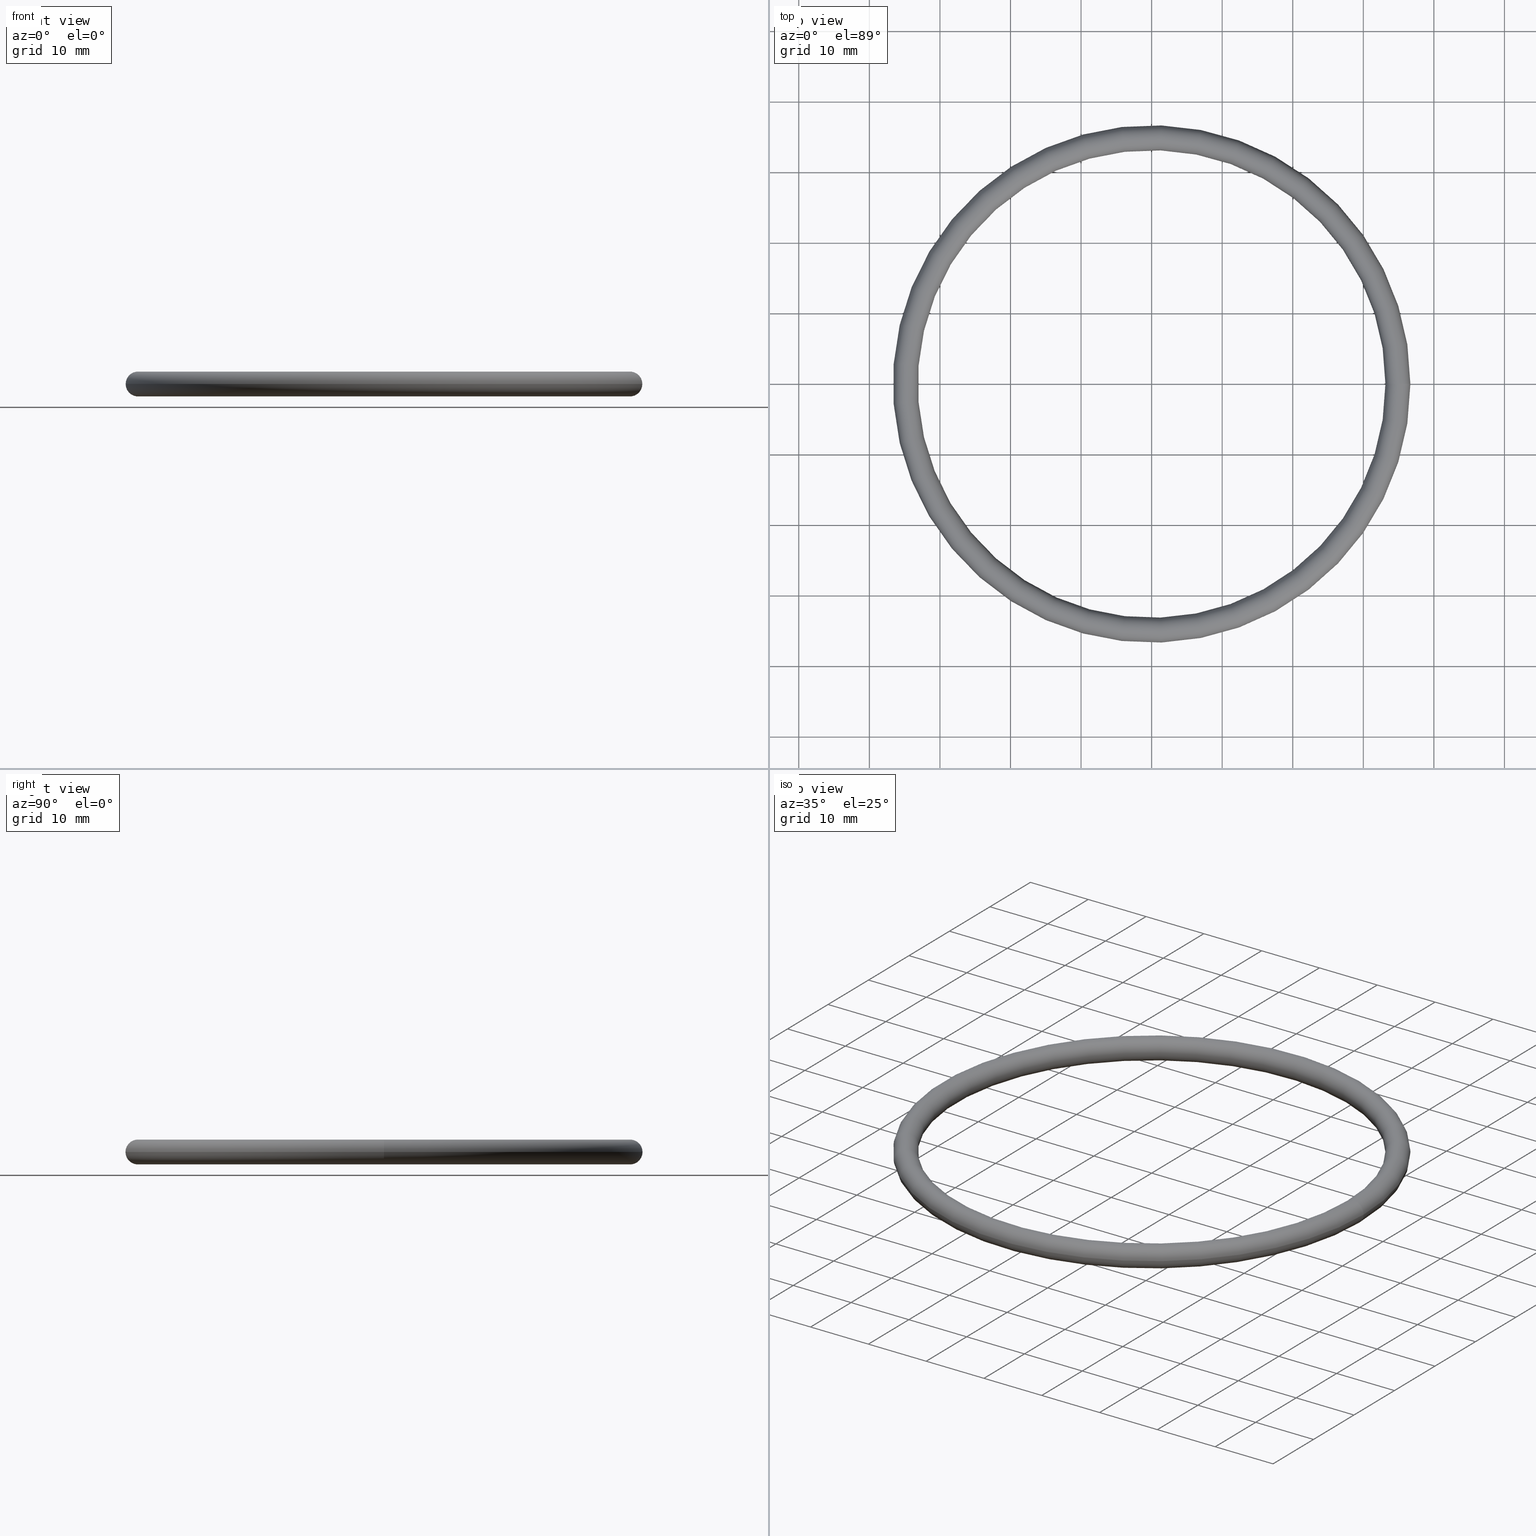
[diagram: canonical four-view strip — front | top / right | iso, engineering-drawing reading convention]
A machine part, canonical four-view strip (front | top / right | iso — engineering-drawing reading convention). The complete STEP part file that produces these views, byte-faithful:
ISO-10303-21;
HEADER;
/* Generated by software containing ST-Developer
 * from STEP Tools, Inc. (www.steptools.com) 
 */
/* OPTION: strings as raw bytes, not using required /X/ escapes */

FILE_DESCRIPTION(
/* description */ (
'CAx-IF Rec.Pracs.---Representation and Presentation of Product Manufa
cturing Information (PMI)---4.0---2014-10-13',
'CAx-IF Rec.Pracs.---3D Tessellated Geometry---0.4---2014-09-14','2;1'),

/* implementation_level */ '2;1');

FILE_NAME(
/* name */ 'O-V231',
/* time_stamp */ '2021-10-26T13:48:23-04:00',
/* author */ (''),
/* organization */ ('Kurt J. Lesker Company'),
/* preprocessor_version */ 'ST-DEVELOPER v16.7',
/* originating_system */ 'Solid Edge',
/* authorisation */ 'Unknown');

FILE_SCHEMA (('AP242_MANAGED_MODEL_BASED_3D_ENGINEERING_MIM_LF { 1 0 10303 442 1 1 4 }'));
ENDSEC;

DATA;
#10=SHAPE_REPRESENTATION_RELATIONSHIP('','',#28,#11);
#11=ADVANCED_BREP_SHAPE_REPRESENTATION('',(#26),#39);
#12=VERTEX_POINT('',#37);
#13=VERTEX_LOOP('',#12);
#14=FACE_BOUND('',#13,.T.);
#15=TOROIDAL_SURFACE('',#30,1.374,0.0695);
#16=ADVANCED_FACE('',(#14),#15,.T.);
#17=CLOSED_SHELL('',(#16));
#18=STYLED_ITEM('',(#19),#26);
#19=PRESENTATION_STYLE_ASSIGNMENT((#20));
#20=SURFACE_STYLE_USAGE(.BOTH.,#21);
#21=SURFACE_SIDE_STYLE('',(#22));
#22=SURFACE_STYLE_FILL_AREA(#23);
#23=FILL_AREA_STYLE('',(#24));
#24=FILL_AREA_STYLE_COLOUR('',#25);
#25=COLOUR_RGB('',0.400000005960464,0.295081973075867,0.131147548556328);
#26=MANIFOLD_SOLID_BREP('',#17);
#27=SHAPE_DEFINITION_REPRESENTATION(#47,#28);
#28=SHAPE_REPRESENTATION('Template O-ring',(#29),#39);
#29=AXIS2_PLACEMENT_3D('',#35,#31,#32);
#30=AXIS2_PLACEMENT_3D('',#36,#33,#34);
#31=DIRECTION('',(0.,0.,1.));
#32=DIRECTION('',(1.,0.,0.));
#33=DIRECTION('',(0.,0.,1.));
#34=DIRECTION('',(1.,0.,0.));
#35=CARTESIAN_POINT('',(0.,0.,0.));
#36=CARTESIAN_POINT('',(0.,0.,0.));
#37=CARTESIAN_POINT('',(1.3045,0.,-8.51129525407411E-18));
#38=MECHANICAL_DESIGN_GEOMETRIC_PRESENTATION_REPRESENTATION('',(#18),#39);
#39=(
GEOMETRIC_REPRESENTATION_CONTEXT(3)
GLOBAL_UNCERTAINTY_ASSIGNED_CONTEXT((#40))
GLOBAL_UNIT_ASSIGNED_CONTEXT((#43,#42,#41))
REPRESENTATION_CONTEXT('Template O-ring','TOP_LEVEL_ASSEMBLY_PART')
);
#40=UNCERTAINTY_MEASURE_WITH_UNIT(LENGTH_MEASURE(0.000196850393700787),
#43,'DISTANCE_ACCURACY_VALUE','Maximum Tolerance applied to model');
#41=(
NAMED_UNIT(*)
SI_UNIT($,.STERADIAN.)
SOLID_ANGLE_UNIT()
);
#42=(
NAMED_UNIT(*)
PLANE_ANGLE_UNIT()
SI_UNIT($,.RADIAN.)
);
#43=(
CONVERSION_BASED_UNIT('INCH',#45)
LENGTH_UNIT()
NAMED_UNIT(#44)
);
#44=DIMENSIONAL_EXPONENTS(1.,0.,0.,0.,0.,0.,0.);
#45=LENGTH_MEASURE_WITH_UNIT(LENGTH_MEASURE(25.4),#46);
#46=(
LENGTH_UNIT()
NAMED_UNIT(*)
SI_UNIT(.MILLI.,.METRE.)
);
#47=PRODUCT_DEFINITION_SHAPE('','',#48);
#48=PRODUCT_DEFINITION('','',#50,#49);
#49=PRODUCT_DEFINITION_CONTEXT('',#56,'design');
#50=PRODUCT_DEFINITION_FORMATION_WITH_SPECIFIED_SOURCE('','',#52,
 .NOT_KNOWN.);
#51=PRODUCT_RELATED_PRODUCT_CATEGORY('','',(#52));
#52=PRODUCT('Template O-ring','Template O-ring','Template O-ring',(#54));
#53=PRODUCT_CATEGORY('','');
#54=PRODUCT_CONTEXT('',#56,'mechanical');
#55=APPLICATION_PROTOCOL_DEFINITION('international standard',
'ap242_managed_model_based_3d_engineering',2011,#56);
#56=APPLICATION_CONTEXT('managed model based 3d engineering');
ENDSEC;
END-ISO-10303-21;
